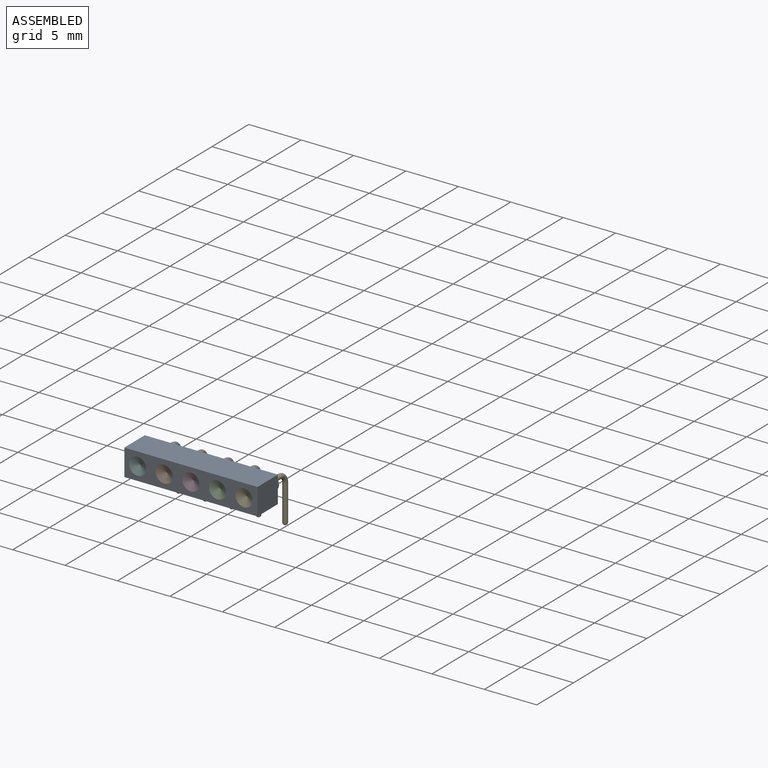
[diagram: assembled view]
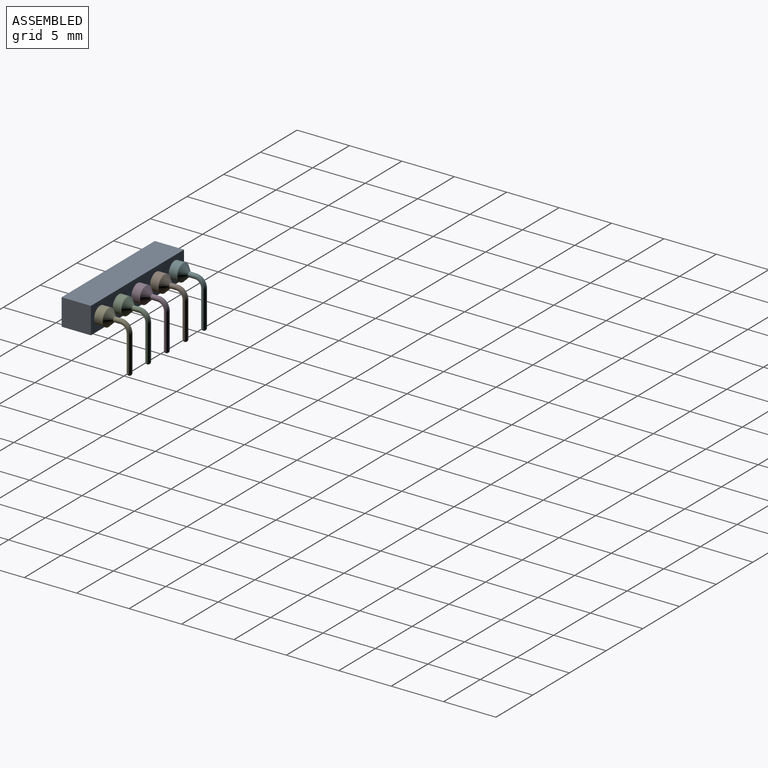
[diagram: assembled view, second angle]
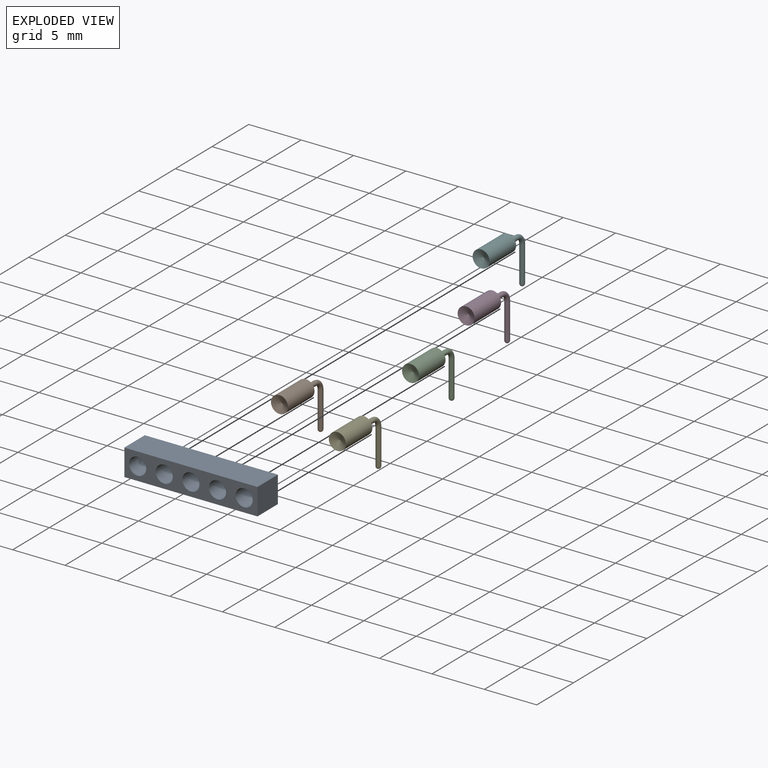
[diagram: exploded view]
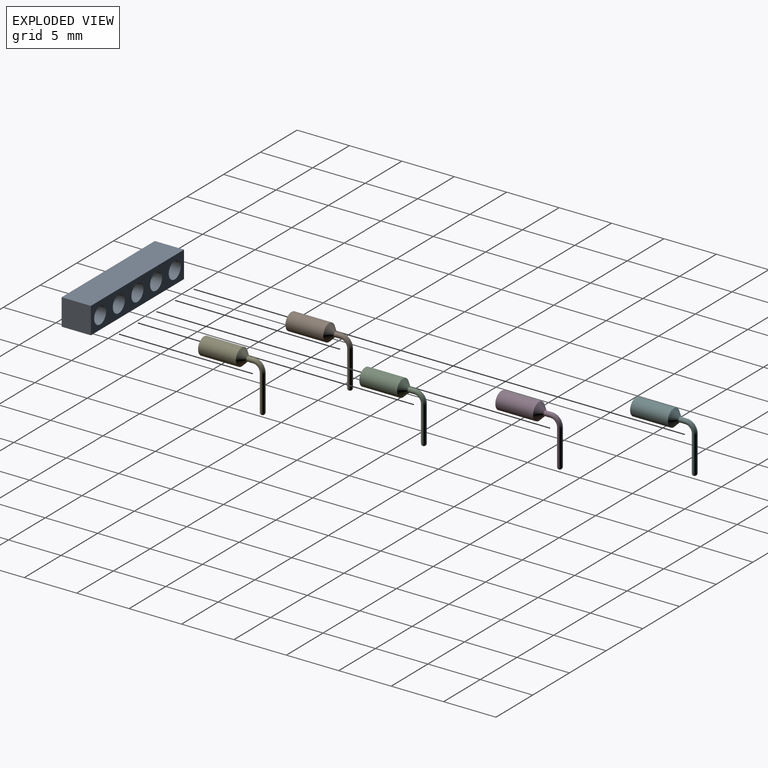
[diagram: exploded view, second angle]
ASSEMBLY  parts=6 mates=5
PART A: 11 faces, bbox 12.7x2.5x2.8 mm
  f0: plane 12.7x2.79mm, normal (0,1,0), area 35.4mm2, adj f1,f3,f4,f5
  f1: plane 2.79x2.54mm, normal (-1,0,0), area 7.1mm2, adj f0,f2,f4,f5
  f2: plane 12.7x2.79mm, normal (0,-1,0), area 35.4mm2, adj f1,f3,f4,f5
  f3: plane 2.79x2.54mm, normal (1,0,0), area 7.1mm2, adj f0,f2,f4,f5
  f4: plane 12.7x2.54mm, normal (0,0,1), area 21.8mm2, adj f0,f1,f2,f3,f6,f7,f8,f9
  f5: plane 12.7x2.54mm, normal (0,0,-1), area 21.8mm2, adj f0,f1,f2,f3,f6,f7,f8,f9
  f6: cylinder r=0.81mm len=2.79mm, axis (0,0,1), area 14.3mm2, adj f4,f5
  f7: cylinder r=0.81mm len=2.79mm, axis (0,0,1), area 14.3mm2, adj f4,f5
  f8: cylinder r=0.81mm len=2.79mm, axis (0,0,1), area 14.3mm2, adj f4,f5
  f9: cylinder r=0.81mm len=2.79mm, axis (0,0,1), area 14.3mm2, adj f4,f5
  f10: cylinder r=0.81mm len=2.79mm, axis (0,0,1), area 14.3mm2, adj f4,f5
PART B: 7 faces, bbox 1.6x5.3x5.9 mm
  f0: cylinder r=0.81mm len=3.61mm, axis (0,0,1), area 18.5mm2, adj f1,f6
  f1: cone r=0.81mm half-angle=66deg, axis (0,0,1), area 2.3mm2, adj f0
  f2: cylinder r=0.23mm len=0.59mm, axis (0,0,-1), area 0.8mm2, adj f3,f6
  f3: torus R=0.81mm, axis (1,0,0), area 1.9mm2, adj f2,f4
  f4: cylinder r=0.23mm len=3.43mm, axis (0,1,0), area 4.9mm2, adj f3,f5
  f5: sphere r=0.23mm, area 0.3mm2, adj f4
  f6: cone r=0.81mm half-angle=45deg, axis (0,0,1), area 2.7mm2, adj f0,f2
PART C: same geometry as B
PART D: same geometry as B
PART E: same geometry as B
PART F: same geometry as B
PLACE A rot(axis=(-1,0,0),90deg) t=(0,0,0)mm
PLACE B rot(axis=(0,-0.71,0.71),180deg) t=(-7.62,2.79,0)mm
PLACE C rot(axis=(0,-0.71,0.71),180deg) t=(-2.54,2.79,0)mm
PLACE D rot(axis=(0,-0.71,0.71),180deg) t=(-5.08,2.79,0)mm
PLACE E rot(axis=(0,-0.71,0.71),180deg) t=(0,2.79,0)mm
PLACE F rot(axis=(0,-0.71,0.71),180deg) t=(-10.16,2.79,0)mm
MATE fastened A.f6 <-> E.f0  axis (0,-1,0) through (5.08,0,0)mm
MATE fastened A.f8 <-> D.f0  axis (0,-1,0) through (0,0,0)mm
MATE fastened C.f1 <-> A.f7  axis (0,-1,0) through (2.54,0,0)mm
MATE fastened A.f10 <-> F.f1  axis (0,1,0) through (-5.08,0,0)mm
MATE fastened A.f9 <-> B.f0  axis (0,-1,0) through (-2.54,0,0)mm
